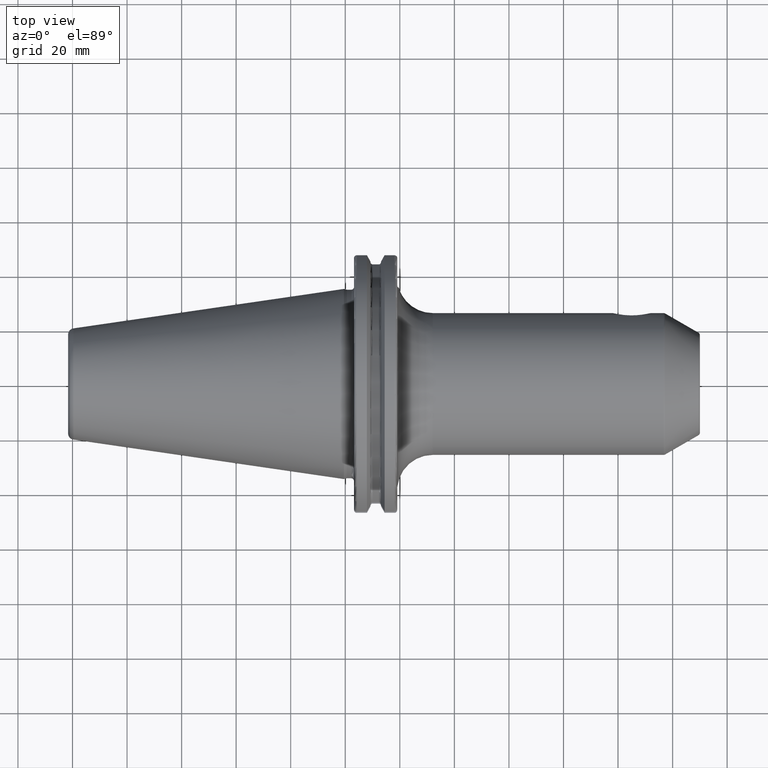
[diagram: clean part render]
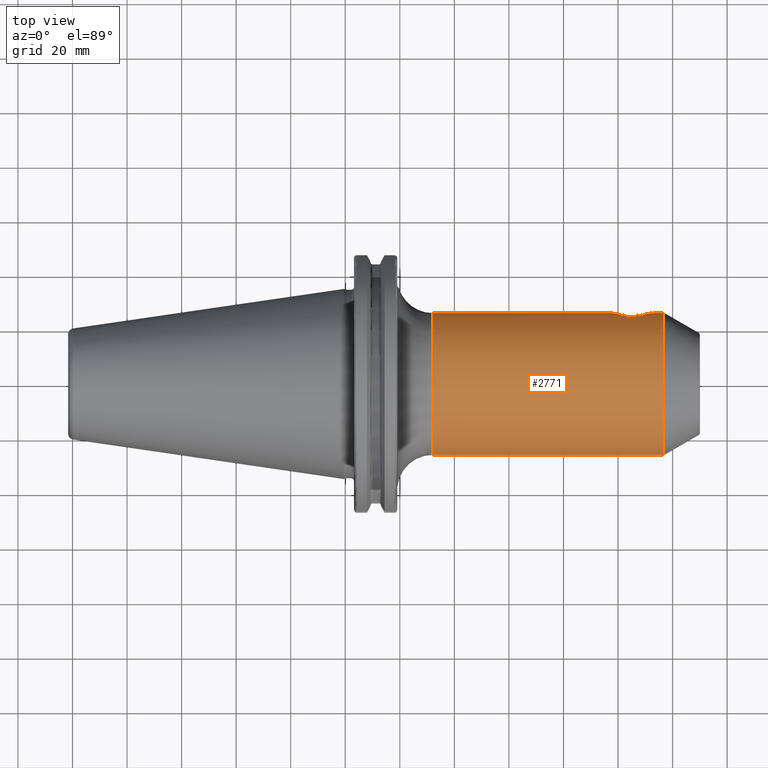
[diagram: same view with one face highlighted and labeled with its STEP entity id]
A machine part, top view. The second image highlights one B-rep face of the part: STEP entity #2771.
In plain terms, the highlighted cylindrical surface (partial cylindrical patch) has radius 26 mm, axis along (1, 0, 0).
Its self-contained STEP definition (entity closure, byte-faithful):
#1014=CARTESIAN_POINT('',(1.12E2,2.6E1,0.E0));
#1015=CARTESIAN_POINT('',(1.12E2,2.6E1,3.510665350964E-1));
#1016=CARTESIAN_POINT('',(1.119478518578E2,2.598588585978E1,1.043685693375E0));
#1017=CARTESIAN_POINT('',(1.117159994175E2,2.592444572113E1,2.063092896117E0));
#1018=CARTESIAN_POINT('',(1.113388016070E2,2.582862911843E1,3.029737360244E0));
#1019=CARTESIAN_POINT('',(1.108202796149E2,2.570542999283E1,3.935223725906E0));
#1020=CARTESIAN_POINT('',(1.101736899019E2,2.556571782498E1,4.753923106103E0));
#1021=CARTESIAN_POINT('',(1.094027148445E2,2.541979314925E1,5.476051388510E0));
#1022=CARTESIAN_POINT('',(1.085322817219E2,2.528240416483E1,6.074491247736E0));
#1023=CARTESIAN_POINT('',(1.075722888759E2,2.516540268092E1,6.538731675266E0));
#1024=CARTESIAN_POINT('',(1.065729548152E2,2.508243082981E1,6.847591835678E0));
#1025=CARTESIAN_POINT('',(1.055380839715E2,2.503859519360E1,7.004979493226E0));
#1026=CARTESIAN_POINT('',(1.045042703982E2,2.503770408257E1,7.008138665257E0));
#1027=CARTESIAN_POINT('',(1.034676280347E2,2.507989258697E1,6.856812028099E0));
#1028=CARTESIAN_POINT('',(1.024668670564E2,2.516141338662E1,6.553936439899E0));
#1029=CARTESIAN_POINT('',(1.015052116758E2,2.527715670152E1,6.096099791184E0));
#1030=CARTESIAN_POINT('',(1.006298205762E2,2.541409665821E1,5.502337108540E0));
#1031=CARTESIAN_POINT('',(9.984976377252E1,2.556089724612E1,4.779891852597E0));
#1032=CARTESIAN_POINT('',(9.919488504006E1,2.570194693727E1,3.958212607070E0));
#1033=CARTESIAN_POINT('',(9.866970753756E1,2.582651144403E1,3.048225473279E0));
#1034=CARTESIAN_POINT('',(9.828789824267E1,2.592342275165E1,2.076789987286E0));
#1035=CARTESIAN_POINT('',(9.805291428523E1,2.598567730458E1,1.051119385951E0));
#1036=CARTESIAN_POINT('',(9.8E1,2.6E1,3.536677968395E-1));
#1037=CARTESIAN_POINT('',(9.8E1,2.6E1,0.E0));
#1039=CARTESIAN_POINT('',(1.167320508076E2,0.E0,0.E0));
#1040=DIRECTION('',(-1.E0,0.E0,0.E0));
#1041=DIRECTION('',(0.E0,-1.E0,0.E0));
#1042=AXIS2_PLACEMENT_3D('',#1039,#1040,#1041);
#1044=CARTESIAN_POINT('',(3.205E1,0.E0,0.E0));
#1045=DIRECTION('',(1.E0,0.E0,0.E0));
#1046=DIRECTION('',(0.E0,1.E0,0.E0));
#1047=AXIS2_PLACEMENT_3D('',#1044,#1045,#1046);
#1204=DIRECTION('',(-9.999999996975E-1,-1.534497572769E-9,2.459587995682E-5));
#1205=VECTOR('',#1204,6.595000001995E1);
#1206=CARTESIAN_POINT('',(9.8E1,2.6E1,0.E0));
#1207=LINE('',#1206,#1205);
#1213=DIRECTION('',(-9.999999998165E-1,1.195059802769E-9,-1.915516067191E-5));
#1214=VECTOR('',#1213,8.468205082310E1);
#1215=CARTESIAN_POINT('',(1.167320508076E2,-2.6E1,5.897384408454E-12));
#1216=LINE('',#1215,#1214);
#1222=DIRECTION('',(-1.E0,0.E0,1.246769621561E-12));
#1223=VECTOR('',#1222,4.732050807569E0);
#1224=CARTESIAN_POINT('',(1.167320508076E2,2.6E1,-5.898181684277E-12));
#1225=LINE('',#1224,#1223);
#1668=CARTESIAN_POINT('',(1.12E2,2.6E1,0.E0));
#1670=VERTEX_POINT('',#1668);
#1672=CARTESIAN_POINT('',(9.8E1,2.6E1,0.E0));
#1674=VERTEX_POINT('',#1672);
#1681=CARTESIAN_POINT('',(3.205E1,-2.6E1,0.E0));
#1682=CARTESIAN_POINT('',(3.205E1,2.6E1,0.E0));
#1683=VERTEX_POINT('',#1681);
#1684=VERTEX_POINT('',#1682);
#1689=CARTESIAN_POINT('',(1.167320508076E2,2.6E1,0.E0));
#1690=CARTESIAN_POINT('',(1.167320508076E2,-2.6E1,0.E0));
#1691=VERTEX_POINT('',#1689);
#1692=VERTEX_POINT('',#1690);
#2753=CARTESIAN_POINT('',(1.35025E1,0.E0,0.E0));
#2754=DIRECTION('',(1.E0,0.E0,0.E0));
#2755=DIRECTION('',(0.E0,-1.E0,0.E0));
#2756=AXIS2_PLACEMENT_3D('',#2753,#2754,#2755);
#2757=CYLINDRICAL_SURFACE('',#2756,2.6E1);
#2759=ORIENTED_EDGE('',*,*,#2758,.F.);
#2761=ORIENTED_EDGE('',*,*,#2760,.F.);
#2763=ORIENTED_EDGE('',*,*,#2762,.F.);
#2765=ORIENTED_EDGE('',*,*,#2764,.T.);
#2766=ORIENTED_EDGE('',*,*,#2014,.F.);
#2768=ORIENTED_EDGE('',*,*,#2767,.F.);
#2769=EDGE_LOOP('',(#2759,#2761,#2763,#2765,#2766,#2768));
#2770=FACE_OUTER_BOUND('',#2769,.F.);
#2771=ADVANCED_FACE('',(#2770),#2757,.T.);
#1038=B_SPLINE_CURVE_WITH_KNOTS('',3,(#1014,#1015,#1016,#1017,#1018,#1019,#1020,
#1021,#1022,#1023,#1024,#1025,#1026,#1027,#1028,#1029,#1030,#1031,#1032,#1033,
#1034,#1035,#1036,#1037),.UNSPECIFIED.,.F.,.F.,(4,1,1,1,1,1,1,1,1,1,1,1,1,1,1,1,
1,1,1,1,1,4),(0.E0,4.761904761905E-2,9.523809523810E-2,1.428571428571E-1,
1.904761904762E-1,2.380952380952E-1,2.857142857143E-1,3.333333333333E-1,
3.809523809524E-1,4.285714285714E-1,4.761904761905E-1,5.238095238095E-1,
5.714285714286E-1,6.190476190476E-1,6.666666666667E-1,7.142857142857E-1,
7.619047619048E-1,8.095238095238E-1,8.571428571429E-1,9.047619047619E-1,
9.523809523810E-1,1.E0),.UNSPECIFIED.);
#1043=CIRCLE('',#1042,2.6E1);
#1048=CIRCLE('',#1047,2.6E1);
#2014=EDGE_CURVE('',#1684,#1683,#1048,.T.);
#2758=EDGE_CURVE('',#1670,#1674,#1038,.T.);
#2760=EDGE_CURVE('',#1691,#1670,#1225,.T.);
#2762=EDGE_CURVE('',#1692,#1691,#1043,.T.);
#2764=EDGE_CURVE('',#1692,#1683,#1216,.T.);
#2767=EDGE_CURVE('',#1674,#1684,#1207,.T.);